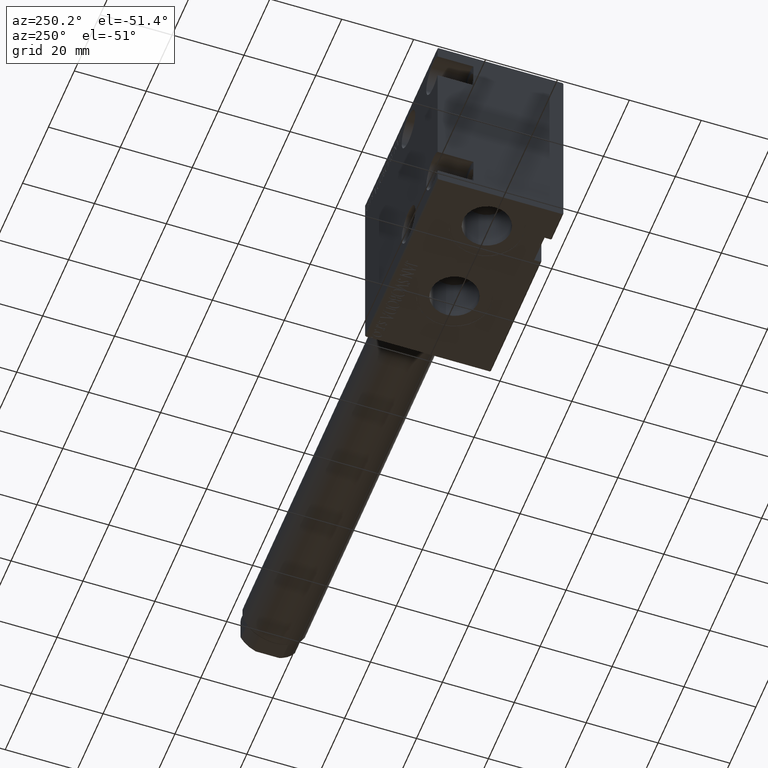
[diagram: clean part render]
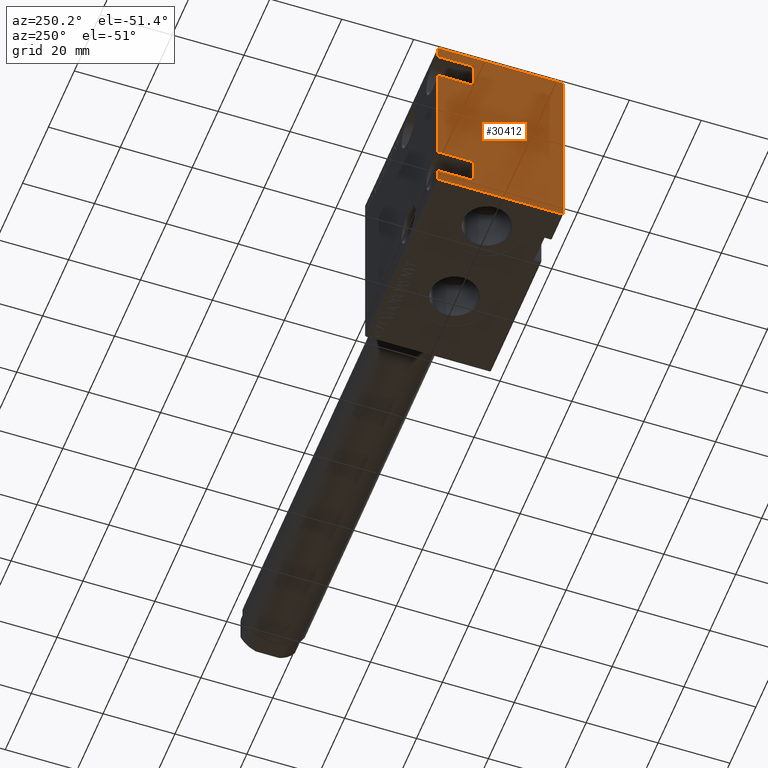
[diagram: same view with one face highlighted and labeled with its STEP entity id]
A machine part, auxiliary view. The second image highlights one B-rep face of the part: STEP entity #30412.
In plain terms, the highlighted planar face has unit normal (-1, 0, 0).
Its self-contained STEP definition (entity closure, byte-faithful):
#495 = ORIENTED_EDGE ( 'NONE', *, *, #22510, .T. ) ;
#1275 = VERTEX_POINT ( 'NONE', #9155 ) ;
#1945 = VERTEX_POINT ( 'NONE', #16675 ) ;
#1971 = CARTESIAN_POINT ( 'NONE',  ( 56.00000000000000000, 17.50000000000000355, -27.19999999999999574 ) ) ;
#2177 = DIRECTION ( 'NONE',  ( 0.000000000000000000, 1.000000000000000000, -9.912705577010325549E-17 ) ) ;
#2284 = DIRECTION ( 'NONE',  ( 0.000000000000000000, -0.7071067811865474617, -0.7071067811865474617 ) ) ;
#3217 = DIRECTION ( 'NONE',  ( 0.000000000000000000, 1.000000000000000000, 0.000000000000000000 ) ) ;
#3660 = LINE ( 'NONE', #10652, #7679 ) ;
#3927 = VERTEX_POINT ( 'NONE', #25098 ) ;
#4538 = CARTESIAN_POINT ( 'NONE',  ( 56.00000000000000000, 17.20000000000000284, 27.50000000000000000 ) ) ;
#4899 = CARTESIAN_POINT ( 'NONE',  ( 56.00000000000000000, -7.499999999999998224, -23.91311896062463305 ) ) ;
#5101 = ORIENTED_EDGE ( 'NONE', *, *, #24423, .T. ) ;
#5162 = EDGE_CURVE ( 'NONE', #8545, #1945, #41823, .T. ) ;
#5632 = VERTEX_POINT ( 'NONE', #42629 ) ;
#5844 = VERTEX_POINT ( 'NONE', #30069 ) ;
#6038 = CARTESIAN_POINT ( 'NONE',  ( 56.00000000000000000, -7.499999999999998224, 0.000000000000000000 ) ) ;
#6629 = CARTESIAN_POINT ( 'NONE',  ( 56.00000000000000000, 17.50000000000000355, -27.50000000000000355 ) ) ;
#7062 = CARTESIAN_POINT ( 'NONE',  ( 56.00000000000000000, 17.49999999999999645, 27.20000000000000995 ) ) ;
#7679 = VECTOR ( 'NONE', #16982, 1000.000000000000000 ) ;
#8124 = ORIENTED_EDGE ( 'NONE', *, *, #14762, .T. ) ;
#8226 = DIRECTION ( 'NONE',  ( 1.000000000000000000, 0.000000000000000000, 0.000000000000000000 ) ) ;
#8540 = ORIENTED_EDGE ( 'NONE', *, *, #31939, .T. ) ;
#8545 = VERTEX_POINT ( 'NONE', #19416 ) ;
#8738 = CARTESIAN_POINT ( 'NONE',  ( 56.00000000000000000, 22.34999999999990550, 22.35000000000015774 ) ) ;
#9155 = CARTESIAN_POINT ( 'NONE',  ( 56.00000000000000000, -7.499999999999998224, -23.91311896062463305 ) ) ;
#9702 = LINE ( 'NONE', #16028, #14631 ) ;
#10186 = DIRECTION ( 'NONE',  ( -0.000000000000000000, 0.7071067811865474617, -0.7071067811865474617 ) ) ;
#10554 = ORIENTED_EDGE ( 'NONE', *, *, #14391, .T. ) ;
#10652 = CARTESIAN_POINT ( 'NONE',  ( 56.00000000000000000, 22.35000000000020037, -22.34999999999968523 ) ) ;
#11073 = ORIENTED_EDGE ( 'NONE', *, *, #13484, .T. ) ;
#11519 = VECTOR ( 'NONE', #40871, 1000.000000000000000 ) ;
#12310 = ORIENTED_EDGE ( 'NONE', *, *, #29629, .T. ) ;
#12555 = VECTOR ( 'NONE', #3217, 1000.000000000000000 ) ;
#13072 = EDGE_CURVE ( 'NONE', #20405, #34597, #25634, .T. ) ;
#13238 = VECTOR ( 'NONE', #18182, 1000.000000000000000 ) ;
#13465 = CARTESIAN_POINT ( 'NONE',  ( 56.00000000000000000, -17.49999999999999645, 27.49999999999999289 ) ) ;
#13484 = EDGE_CURVE ( 'NONE', #20405, #1275, #35976, .T. ) ;
#14234 = ORIENTED_EDGE ( 'NONE', *, *, #18241, .F. ) ;
#14261 = VECTOR ( 'NONE', #2284, 1000.000000000000114 ) ;
#14338 = EDGE_CURVE ( 'NONE', #37927, #26530, #25323, .T. ) ;
#14391 = EDGE_CURVE ( 'NONE', #25339, #3927, #18780, .T. ) ;
#14631 = VECTOR ( 'NONE', #42661, 1000.000000000000000 ) ;
#14647 = CARTESIAN_POINT ( 'NONE',  ( 56.00000000000000000, -7.499999999999998224, 23.91311896062464726 ) ) ;
#14762 = EDGE_CURVE ( 'NONE', #26530, #8545, #25910, .T. ) ;
#14849 = DIRECTION ( 'NONE',  ( -0.000000000000000000, -0.7071067811865515695, 0.7071067811865435759 ) ) ;
#15248 = ORIENTED_EDGE ( 'NONE', *, *, #21130, .T. ) ;
#15375 = DIRECTION ( 'NONE',  ( 0.000000000000000000, 1.000000000000000000, 0.000000000000000000 ) ) ;
#15381 = VECTOR ( 'NONE', #10186, 1000.000000000000114 ) ;
#15658 = EDGE_CURVE ( 'NONE', #29495, #37132, #32911, .T. ) ;
#15663 = CARTESIAN_POINT ( 'NONE',  ( 56.00000000000000000, 17.49999999999999645, 27.50000000000000000 ) ) ;
#15754 = ORIENTED_EDGE ( 'NONE', *, *, #5162, .T. ) ;
#15809 = DIRECTION ( 'NONE',  ( -0.000000000000000000, -1.000000000000000000, -0.000000000000000000 ) ) ;
#16028 = CARTESIAN_POINT ( 'NONE',  ( 56.00000000000000000, -7.499999999999998224, 0.000000000000000000 ) ) ;
#16675 = CARTESIAN_POINT ( 'NONE',  ( 56.00000000000000000, -17.49999999999999645, 27.19999999999998508 ) ) ;
#16982 = DIRECTION ( 'NONE',  ( -0.000000000000000000, 0.7071067811865393571, 0.7071067811865556774 ) ) ;
#17904 = EDGE_LOOP ( 'NONE', ( #10554, #15248, #8540, #34593, #8124, #15754, #28997, #19609, #41538, #37695, #12310, #28901, #11073, #14234, #5101, #495 ) ) ;
#18182 = DIRECTION ( 'NONE',  ( 0.000000000000000000, -1.000000000000000000, -1.982541115402065356E-16 ) ) ;
#18241 = EDGE_CURVE ( 'NONE', #5632, #1275, #35267, .T. ) ;
#18780 = LINE ( 'NONE', #32099, #39587 ) ;
#19054 = VECTOR ( 'NONE', #23482, 1000.000000000000000 ) ;
#19365 = EDGE_CURVE ( 'NONE', #29044, #37132, #9702, .T. ) ;
#19416 = CARTESIAN_POINT ( 'NONE',  ( 56.00000000000000000, -17.19999999999998863, 27.49999999999999289 ) ) ;
#19609 = ORIENTED_EDGE ( 'NONE', *, *, #39435, .F. ) ;
#20039 = CARTESIAN_POINT ( 'NONE',  ( 56.00000000000000000, -17.19999999999999574, -27.50000000000000000 ) ) ;
#20171 = DIRECTION ( 'NONE',  ( 0.000000000000000000, -1.261617073437677752E-16, 1.000000000000000000 ) ) ;
#20405 = VERTEX_POINT ( 'NONE', #42464 ) ;
#20995 = CARTESIAN_POINT ( 'NONE',  ( 56.00000000000000000, -7.499999999999998224, 23.91311896062464726 ) ) ;
#21025 = VECTOR ( 'NONE', #39905, 1000.000000000000000 ) ;
#21130 = EDGE_CURVE ( 'NONE', #3927, #26493, #3660, .T. ) ;
#21747 = VECTOR ( 'NONE', #36049, 1000.000000000000000 ) ;
#22411 = CARTESIAN_POINT ( 'NONE',  ( 56.00000000000000000, -17.49999999999999645, -16.08688103937536695 ) ) ;
#22510 = EDGE_CURVE ( 'NONE', #23379, #25339, #36395, .T. ) ;
#22717 = CARTESIAN_POINT ( 'NONE',  ( 56.00000000000000000, -17.49999999999999645, 27.49999999999999289 ) ) ;
#22848 = VECTOR ( 'NONE', #42293, 1000.000000000000000 ) ;
#22962 = VECTOR ( 'NONE', #15375, 1000.000000000000000 ) ;
#23379 = VERTEX_POINT ( 'NONE', #30689 ) ;
#23482 = DIRECTION ( 'NONE',  ( 0.000000000000000000, 0.000000000000000000, -1.000000000000000000 ) ) ;
#23690 = LINE ( 'NONE', #40300, #19054 ) ;
#24423 = EDGE_CURVE ( 'NONE', #5632, #23379, #39689, .T. ) ;
#24601 = CARTESIAN_POINT ( 'NONE',  ( 56.00000000000000000, 0.000000000000000000, 0.000000000000000000 ) ) ;
#24896 = EDGE_CURVE ( 'NONE', #1945, #5844, #32752, .T. ) ;
#25098 = CARTESIAN_POINT ( 'NONE',  ( 56.00000000000000000, 17.20000000000000284, -27.50000000000000355 ) ) ;
#25323 = LINE ( 'NONE', #8738, #35424 ) ;
#25339 = VERTEX_POINT ( 'NONE', #20039 ) ;
#25634 = LINE ( 'NONE', #32413, #38767 ) ;
#25910 = LINE ( 'NONE', #15663, #13238 ) ;
#26493 = VERTEX_POINT ( 'NONE', #1971 ) ;
#26530 = VERTEX_POINT ( 'NONE', #4538 ) ;
#26931 = LINE ( 'NONE', #6629, #31687 ) ;
#27880 = CARTESIAN_POINT ( 'NONE',  ( 56.00000000000000000, -17.49999999999999645, 16.08688103937535985 ) ) ;
#27965 = LINE ( 'NONE', #14647, #11519 ) ;
#28901 = ORIENTED_EDGE ( 'NONE', *, *, #13072, .F. ) ;
#28997 = ORIENTED_EDGE ( 'NONE', *, *, #24896, .T. ) ;
#29044 = VERTEX_POINT ( 'NONE', #20995 ) ;
#29495 = VERTEX_POINT ( 'NONE', #27880 ) ;
#29629 = EDGE_CURVE ( 'NONE', #29495, #34597, #23690, .T. ) ;
#30069 = CARTESIAN_POINT ( 'NONE',  ( 56.00000000000000000, -17.49999999999999645, 23.91311896062464726 ) ) ;
#30412 = ADVANCED_FACE ( 'NONE', ( #42067 ), #41427, .T. ) ;
#30689 = CARTESIAN_POINT ( 'NONE',  ( 56.00000000000000000, -17.49999999999999645, -27.19999999999999929 ) ) ;
#31687 = VECTOR ( 'NONE', #20171, 1000.000000000000000 ) ;
#31939 = EDGE_CURVE ( 'NONE', #26493, #37927, #26931, .T. ) ;
#32099 = CARTESIAN_POINT ( 'NONE',  ( 56.00000000000000000, -17.49999999999999645, -27.50000000000000000 ) ) ;
#32413 = CARTESIAN_POINT ( 'NONE',  ( 56.00000000000000000, -7.499999999999998224, -16.08688103937536695 ) ) ;
#32752 = LINE ( 'NONE', #22717, #21747 ) ;
#32911 = LINE ( 'NONE', #33133, #12555 ) ;
#33133 = CARTESIAN_POINT ( 'NONE',  ( 56.00000000000000000, -7.499999999999998224, 16.08688103937535985 ) ) ;
#34593 = ORIENTED_EDGE ( 'NONE', *, *, #14338, .T. ) ;
#34597 = VERTEX_POINT ( 'NONE', #22411 ) ;
#35267 = LINE ( 'NONE', #4899, #22962 ) ;
#35424 = VECTOR ( 'NONE', #14849, 999.9999999999998863 ) ;
#35976 = LINE ( 'NONE', #6038, #22848 ) ;
#36049 = DIRECTION ( 'NONE',  ( 0.000000000000000000, 0.000000000000000000, -1.000000000000000000 ) ) ;
#36395 = LINE ( 'NONE', #40106, #15381 ) ;
#37132 = VERTEX_POINT ( 'NONE', #39259 ) ;
#37695 = ORIENTED_EDGE ( 'NONE', *, *, #15658, .F. ) ;
#37927 = VERTEX_POINT ( 'NONE', #7062 ) ;
#38767 = VECTOR ( 'NONE', #15809, 1000.000000000000000 ) ;
#39259 = CARTESIAN_POINT ( 'NONE',  ( 56.00000000000000000, -7.499999999999998224, 16.08688103937535985 ) ) ;
#39292 = AXIS2_PLACEMENT_3D ( 'NONE', #24601, #8226, #41857 ) ;
#39435 = EDGE_CURVE ( 'NONE', #29044, #5844, #27965, .T. ) ;
#39587 = VECTOR ( 'NONE', #2177, 1000.000000000000000 ) ;
#39689 = LINE ( 'NONE', #13465, #21025 ) ;
#39905 = DIRECTION ( 'NONE',  ( 0.000000000000000000, 0.000000000000000000, -1.000000000000000000 ) ) ;
#40106 = CARTESIAN_POINT ( 'NONE',  ( 56.00000000000000000, -22.34999999999999787, -22.34999999999999787 ) ) ;
#40300 = CARTESIAN_POINT ( 'NONE',  ( 56.00000000000000000, -17.49999999999999645, 27.49999999999999289 ) ) ;
#40871 = DIRECTION ( 'NONE',  ( -0.000000000000000000, -1.000000000000000000, -0.000000000000000000 ) ) ;
#41427 = PLANE ( 'NONE',  #39292 ) ;
#41538 = ORIENTED_EDGE ( 'NONE', *, *, #19365, .T. ) ;
#41823 = LINE ( 'NONE', #42457, #14261 ) ;
#41857 = DIRECTION ( 'NONE',  ( 0.000000000000000000, 0.000000000000000000, -1.000000000000000000 ) ) ;
#42067 = FACE_OUTER_BOUND ( 'NONE', #17904, .T. ) ;
#42293 = DIRECTION ( 'NONE',  ( 0.000000000000000000, 0.000000000000000000, -1.000000000000000000 ) ) ;
#42457 = CARTESIAN_POINT ( 'NONE',  ( 56.00000000000000000, -22.34999999999998721, 22.34999999999998721 ) ) ;
#42464 = CARTESIAN_POINT ( 'NONE',  ( 56.00000000000000000, -7.499999999999998224, -16.08688103937536695 ) ) ;
#42629 = CARTESIAN_POINT ( 'NONE',  ( 56.00000000000000000, -17.49999999999999645, -23.91311896062463305 ) ) ;
#42661 = DIRECTION ( 'NONE',  ( 0.000000000000000000, 0.000000000000000000, -1.000000000000000000 ) ) ;